MODEL slx_bfc5e4dfb72f
KIND model
CONFIG AbsTol = auto
CONFIG EnableMultiTasking = off
CONFIG FixedStep = auto
CONFIG MaxStep = auto
CONFIG MinStep = auto
CONFIG RelTol = 1e-3
CONFIG SampleTimeConstraint = Unconstrained
CONFIG Solver = VariableStepAuto
CONFIG SolverName = VariableStepAuto
CONFIG StartTime = 0.0
CONFIG StopTime = 0.05
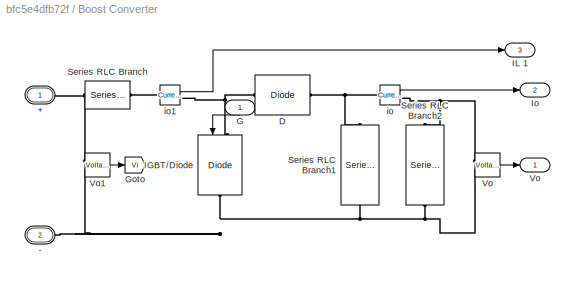
BLOCK [SubSystem] Boost Converter
  Ports = [1, 3, 0, 0, 0, 2]
  RequestExecContextInheritance = off
BLOCK [PMIOPort] Boost Converter/+
  Side = Left
  Tag = PMCPort
BLOCK [PMIOPort] Boost Converter/-
  Port = 2
  Side = Left
  Tag = PMCPort
BLOCK [Reference] Boost Converter/D  REF=powerlib/Power
Electronics/Diode
  Ports = [0, 0, 0, 0, 0, 1, 1]
  SourceBlock = powerlib/Power\nElectronics/Diode
  SourceProductBaseCode = PS
  SourceProductName = Simscape Power Systems
  SourceType = Diode
BLOCK [Inport] Boost Converter/G
  IconDisplay = Port number
BLOCK [Goto] Boost Converter/Goto
  GotoTag = Vi
  TagVisibility = global
BLOCK [Reference] Boost Converter/IGBT//Diode  REF=powerlib/Power
Electronics/IGBT//Diode
  Ports = [1, 0, 0, 0, 0, 1, 1]
  SourceBlock = powerlib/Power\nElectronics/IGBT//Diode
  SourceProductBaseCode = PS
  SourceProductName = Simscape Power Systems
  SourceType = IGBT/Diode
BLOCK [Outport] Boost Converter/IL 1
  IconDisplay = Port number
  Port = 3
BLOCK [Outport] Boost Converter/Io 
  IconDisplay = Port number
  Port = 2
BLOCK [Reference] Boost Converter/Series RLC Branch  REF=powerlib/Elements/Series RLC Branch
  Ports = [0, 0, 0, 0, 0, 1, 1]
  SourceBlock = powerlib/Elements/Series RLC Branch
  SourceProductBaseCode = PS
  SourceProductName = Simscape Power Systems
  SourceType = Series RLC Branch
BLOCK [Reference] Boost Converter/Series RLC Branch1  REF=powerlib/Elements/Series RLC Branch
  Ports = [0, 0, 0, 0, 0, 1, 1]
  SourceBlock = powerlib/Elements/Series RLC Branch
  SourceProductBaseCode = PS
  SourceProductName = Simscape Power Systems
  SourceType = Series RLC Branch
BLOCK [Reference] Boost Converter/Series RLC Branch2  REF=powerlib/Elements/Series RLC Branch
  Ports = [0, 0, 0, 0, 0, 1, 1]
  SourceBlock = powerlib/Elements/Series RLC Branch
  SourceProductBaseCode = PS
  SourceProductName = Simscape Power Systems
  SourceType = Series RLC Branch
BLOCK [Reference] Boost Converter/Vo  REF=powerlib/Measurements/Voltage Measurement
  Ports = [0, 1, 0, 0, 0, 2]
  SourceBlock = powerlib/Measurements/Voltage Measurement
  SourceProductBaseCode = PS
  SourceProductName = Simscape Power Systems
  SourceType = Voltage Measurement
BLOCK [Outport] Boost Converter/Vo 
  IconDisplay = Port number
BLOCK [Reference] Boost Converter/Vo1  REF=powerlib/Measurements/Voltage Measurement
  Ports = [0, 1, 0, 0, 0, 2]
  SourceBlock = powerlib/Measurements/Voltage Measurement
  SourceProductBaseCode = PS
  SourceProductName = Simscape Power Systems
  SourceType = Voltage Measurement
BLOCK [Reference] Boost Converter/io  REF=powerlib/Measurements/Current Measurement
  Ports = [0, 1, 0, 0, 0, 1, 1]
  SourceBlock = powerlib/Measurements/Current Measurement
  SourceProductBaseCode = PS
  SourceProductName = Simscape Power Systems
  SourceType = Current Measurement
BLOCK [Reference] Boost Converter/io1  REF=powerlib/Measurements/Current Measurement
  Ports = [0, 1, 0, 0, 0, 1, 1]
  SourceBlock = powerlib/Measurements/Current Measurement
  SourceProductBaseCode = PS
  SourceProductName = Simscape Power Systems
  SourceType = Current Measurement
BLOCK [Constant] Constant
BLOCK [From] From
BLOCK [From] From1
  GotoTag = IL
BLOCK [From] From2
  GotoTag = G
BLOCK [From] From3
  GotoTag = ILsample
BLOCK [Goto] Goto
  GotoTag = IL
BLOCK [Goto] Goto1
BLOCK [Goto] Goto2
  GotoTag = G
BLOCK [Goto] Goto3
  GotoTag = ILsample
BLOCK [Reference] Input Voltage  REF=powerlib/Electrical
Sources/DC Voltage Source
  Ports = [0, 0, 0, 0, 0, 1, 1]
  SourceBlock = powerlib/Electrical\nSources/DC Voltage Source
  SourceProductBaseCode = PS
  SourceProductName = Simscape Power Systems
  SourceType = DC Voltage Source
BLOCK [Reference] PID Controller  REF=simulink/Continuous/PID Controller
  Ports = [1, 1]
  SourceBlock = simulink/Continuous/PID Controller
  SourceProductBaseCode = SL
  SourceProductName = Simulink
  SourceType = PID 1dof
BLOCK [Reference] Sample and Hold  REF=dspsigops/Sample
and Hold
  Ports = [1, 1, 0, 1]
  SourceBlock = dspsigops/Sample\nand Hold
  SourceProductBaseCode = DS
  SourceProductName = DSP System Toolbox
  SourceType = Sample and Hold
BLOCK [Scope] Scope
  Floating = off
  NumInputPorts = 4
  Ports = [4]
  ScopeSpecificationString = Simulink.scopes.TimeScopeBlockCfg('CurrentConfiguration', extmgr.ConfigurationSet(extmgr.Configuration('Core','General UI',true),extmgr.Configuration('Core','Source UI',true),extmgr.Configuration('Sources','WiredSimulink',true,'DataLoggingVariableName','ScopeData2'),extmgr.Configuration('Visuals','Time Domain',true,'SerializedDisplays',{struct('MinYLimReal','-0.1771','MaxYLimReal','1.59388','YLabe...<+2137ch>
BLOCK [Scope] Scope1
  Floating = off
  NumInputPorts = 3
  Ports = [3]
  ScopeSpecificationString = Simulink.scopes.TimeScopeBlockCfg('CurrentConfiguration', extmgr.ConfigurationSet(extmgr.Configuration('Core','General UI',true),extmgr.Configuration('Core','Source UI',true),extmgr.Configuration('Sources','WiredSimulink',true),extmgr.Configuration('Visuals','Time Domain',true,'SerializedDisplays',{struct('MinYLimReal','-1.11753','MaxYLimReal','10.04797','YLabelReal','','MinYLimMag','0.00000','Max...<+1421ch>
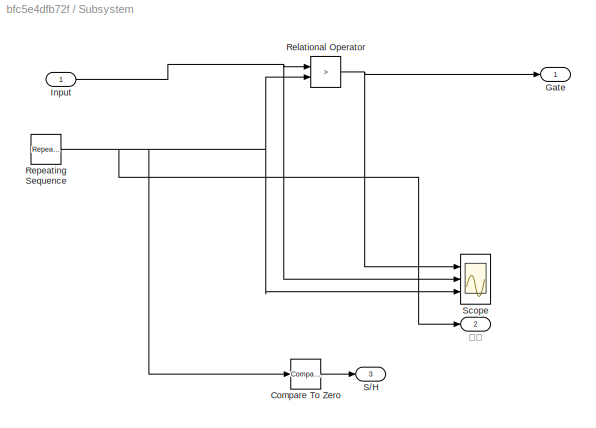
BLOCK [SubSystem] Subsystem
  Ports = [1, 3]
  RequestExecContextInheritance = off
BLOCK [Reference] Subsystem/Compare To Zero  REF=simulink/Logic and Bit
Operations/Compare
To Zero
  Ports = [1, 1]
  SourceBlock = simulink/Logic and Bit\nOperations/Compare\nTo Zero
  SourceProductBaseCode = SL
  SourceProductName = Simulink
  SourceType = Compare To Zero
BLOCK [Outport] Subsystem/Gate
  IconDisplay = Port number
BLOCK [Inport] Subsystem/Input
  IconDisplay = Port number
BLOCK [RelationalOperator] Subsystem/Relational Operator
  InputSameDT = off
  Operator = >
  OutDataTypeStr = boolean
  Ports = [2, 1]
  RndMeth = Simplest
BLOCK [Reference] Subsystem/Repeating Sequence  REF=simulink/Sources/Repeating
Sequence
  Ports = [0, 1]
  SourceBlock = simulink/Sources/Repeating\nSequence
  SourceProductBaseCode = SL
  SourceProductName = Simulink
  SourceType = Repeating table
BLOCK [Outport] Subsystem/S//H
  IconDisplay = Port number
  Port = 3
BLOCK [Scope] Subsystem/Scope
  Floating = off
  NumInputPorts = 3
  Ports = [3]
  ScopeSpecificationString = Simulink.scopes.TimeScopeBlockCfg('CurrentConfiguration', extmgr.ConfigurationSet(extmgr.Configuration('Core','General UI',true),extmgr.Configuration('Core','Source UI',true),extmgr.Configuration('Sources','WiredSimulink',true,'DataLoggingVariableName','ScopeData1'),extmgr.Configuration('Visuals','Time Domain',true,'SerializedDisplays',{struct('MinYLimReal','-0.125','MaxYLimReal','1.125','YLabelRe...<+2477ch>
BLOCK [Outport] Subsystem/载波
  IconDisplay = Port number
  Port = 2
BLOCK [Sum] Sum
  IconShape = round
  InputSameDT = off
  Inputs = |+-
  OutDataTypeStr = Inherit: Inherit via internal rule
  Ports = [2, 1]
  SaturateOnIntegerOverflow = off
BLOCK [Gain] ain
  Gain = 1/1000
  OutDataTypeStr = Inherit: Inherit via internal rule
  ParamDataTypeStr = Inherit: Inherit via internal rule
  SaturateOnIntegerOverflow = off
BLOCK [Reference] powergui  REF=powerlib/powergui
  Ports = []
  Priority = 1
  SourceBlock = powerlib/powergui
  SourceProductBaseCode = PS
  SourceProductName = Simscape Power Systems
  SourceType = PSB option menu block
ANNOTATION (root): Close loop Boost Converter
ANNOTATION (root): HIT ENGINEERS
ANNOTATION (root): Lichuanfeng <email>
ANNOTATION (root): Output Current
LINE Boost Converter/G:1 -> Boost Converter/IGBT//Diode:1
LINE Boost Converter/Vo1:1 -> Boost Converter/Goto:1
LINE Boost Converter/Vo:1 -> Boost Converter/Vo :1
LINE Boost Converter/io1:1 -> Boost Converter/IL 1:1
LINE Boost Converter/io:1 -> Boost Converter/Io :1
LINE Boost Converter:1 -> Scope1:1
LINE Boost Converter:2 -> Scope1:2
NET Boost Converter:3 -> Goto:1, Scope1:3
LINE Constant:1 -> Sum:1
NET From1:1 -> Sample and Hold:1, Scope:4
LINE From2:1 -> Boost Converter:1
LINE From3:1 -> Sum:2
LINE From:1 -> Subsystem:1
LINE PID Controller:1 -> Goto1:1
NET Sample and Hold:1 -> Goto3:1, Scope:3
LINE Subsystem/Compare To Zero:1 -> Subsystem/S//H:1
NET Subsystem/Input:1 -> Subsystem/Relational Operator:1, Subsystem/Scope:2
NET Subsystem/Relational Operator:1 -> Subsystem/Gate:1, Subsystem/Scope:1
NET Subsystem/Repeating Sequence:1 -> Subsystem/Compare To Zero:1, Subsystem/Relational Operator:2, Subsystem/Scope:3, Subsystem/载波:1
NET Subsystem:1 -> Goto2:1, Scope:1
LINE Subsystem:2 -> ain:1
LINE Subsystem:3 -> Sample and Hold:trigger
LINE Sum:1 -> PID Controller:1
LINE ain:1 -> Scope:2
PNET net1: Boost Converter/+:RConn1 -- Boost Converter/Series RLC Branch:LConn1 -- Boost Converter/Vo1:LConn1
PNET net2: Boost Converter/-:RConn1 -- Boost Converter/IGBT//Diode:RConn1 -- Boost Converter/Series RLC Branch1:RConn1 -- Boost Converter/Series RLC Branch2:RConn1 -- Boost Converter/Vo1:LConn2 -- Boost Converter/Vo:LConn2
PNET net3: Boost Converter/D:LConn1 -- Boost Converter/IGBT//Diode:LConn1 -- Boost Converter/io1:RConn1
PNET net4: Boost Converter/D:RConn1 -- Boost Converter/Series RLC Branch1:LConn1 -- Boost Converter/io:LConn1
PNET net5: Boost Converter/Series RLC Branch2:LConn1 -- Boost Converter/Vo:LConn1 -- Boost Converter/io:RConn1
PLINE Boost Converter/Series RLC Branch:RConn1 -- Boost Converter/io1:LConn1
PLINE Boost Converter:LConn1 -- Input Voltage:RConn1
PLINE Boost Converter:LConn2 -- Input Voltage:LConn1
note: NET lines group one-source signal fan-out (src -> all destinations, sorted); 1:1 wires keep LINE; PNET lines group multi-terminal physical nets as a canonical sorted terminal list (undirected conserving connections); 2-terminal nets keep the pairwise PLINE form
